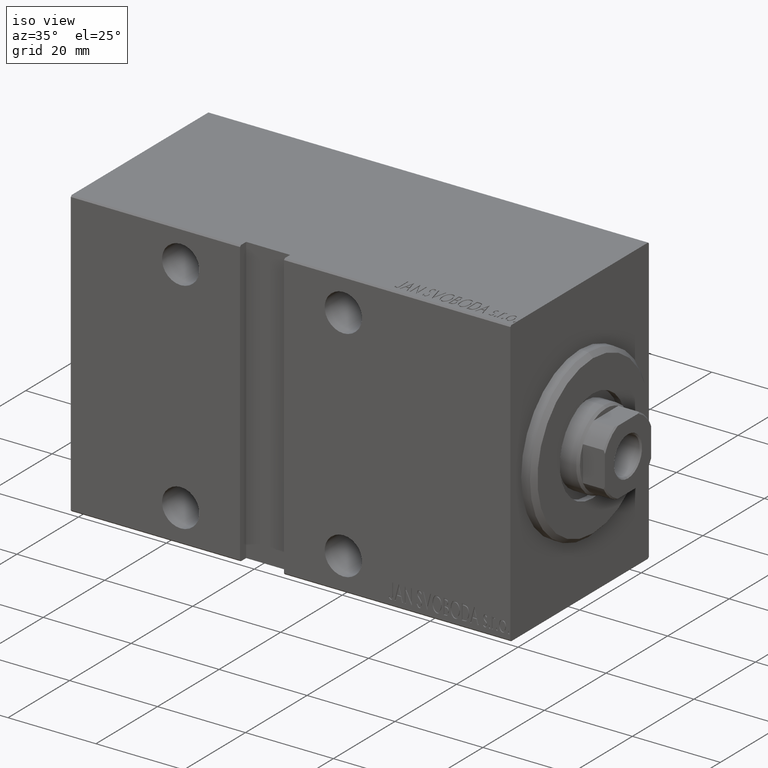
[diagram: clean part render]
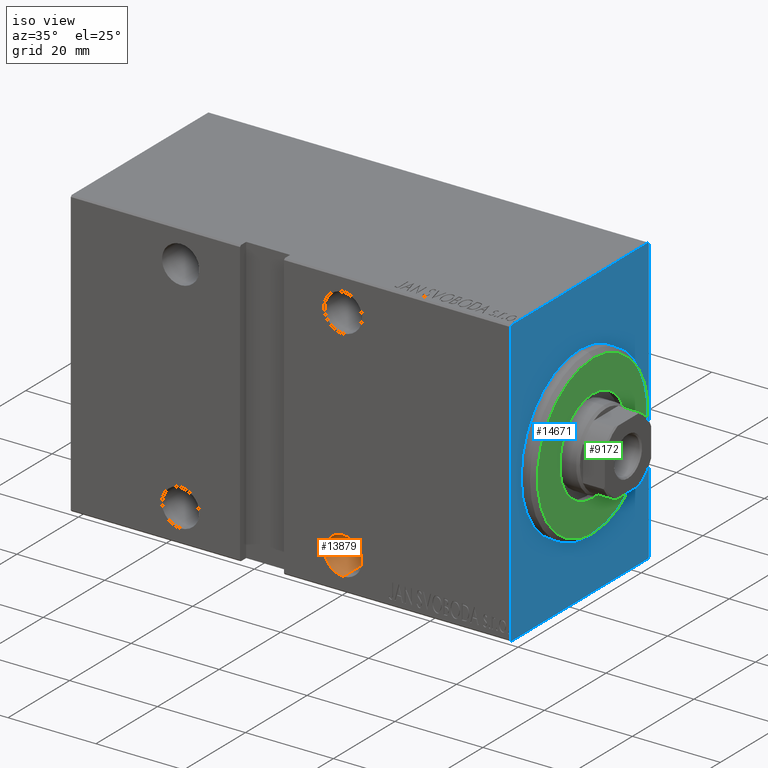
[diagram: same view with three faces highlighted in distinct colors, each labeled with its STEP entity id]
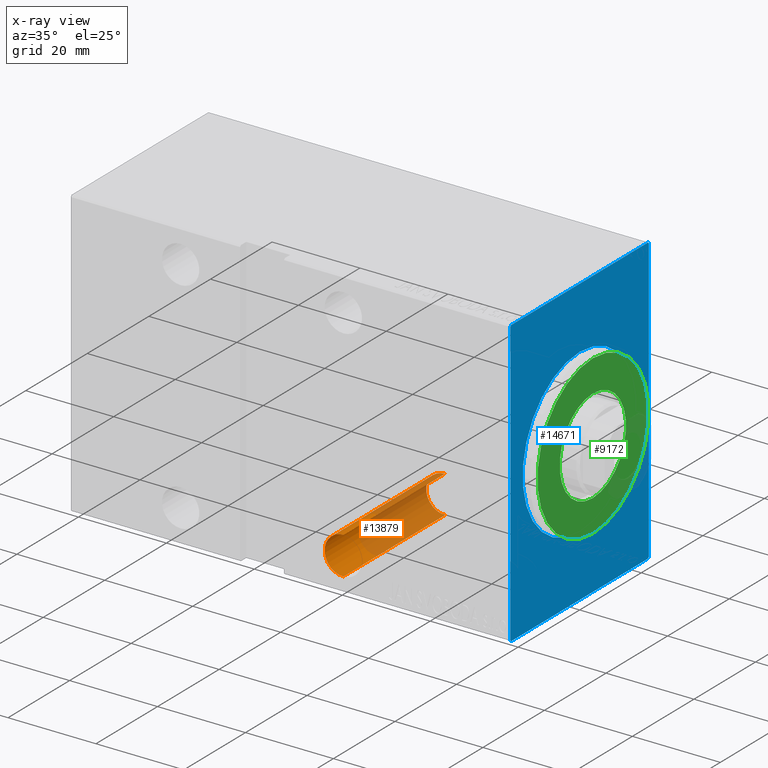
[diagram: x-ray of the same camera — body ghosted, the three highlighted faces saturated]
A machine part, iso view with three faces highlighted in distinct colors.
The next image is the same camera in x-ray (body ghosted, the three faces saturated) — at least one of them is partly hidden behind the body in this view.
Their STEP definitions:

[orange] entity #13879 — the highlighted cylindrical surface (edge-blend (fillet) strip) has radius 4.25 mm, axis along (0, -1, 0).
#2308 = ORIENTED_EDGE ( 'NONE', *, *, #37726, .F. ) ;
#3175 = ORIENTED_EDGE ( 'NONE', *, *, #19054, .F. ) ;
#3589 = AXIS2_PLACEMENT_3D ( 'NONE', #19156, #6483, #42563 ) ;
#3669 = CARTESIAN_POINT ( 'NONE',  ( 38.00000000000000711, -10.49999999999999467, -24.99999999999999645 ) ) ;
#5349 = AXIS2_PLACEMENT_3D ( 'NONE', #34226, #13668, #26984 ) ;
#6483 = DIRECTION ( 'NONE',  ( 0.000000000000000000, -1.000000000000000000, -1.067522139062650425E-16 ) ) ;
#7336 = CYLINDRICAL_SURFACE ( 'NONE', #5349, 4.250000000000003553 ) ;
#8058 = CARTESIAN_POINT ( 'NONE',  ( 38.00000000000000711, -22.50000000000001776, -20.74999999999999289 ) ) ;
#10815 = VERTEX_POINT ( 'NONE', #23837 ) ;
#13668 = DIRECTION ( 'NONE',  ( -0.000000000000000000, 1.000000000000000000, 1.261617073437677752E-16 ) ) ;
#13879 = ADVANCED_FACE ( 'NONE', ( #30280 ), #7336, .F. ) ;
#14787 = VECTOR ( 'NONE', #35364, 1000.000000000000000 ) ;
#15052 = DIRECTION ( 'NONE',  ( -0.000000000000000000, 1.000000000000000000, 1.261617073437677752E-16 ) ) ;
#16551 = DIRECTION ( 'NONE',  ( 0.000000000000000000, 0.000000000000000000, -1.000000000000000000 ) ) ;
#17667 = VERTEX_POINT ( 'NONE', #33690 ) ;
#18072 = VERTEX_POINT ( 'NONE', #37576 ) ;
#18340 = LINE ( 'NONE', #21815, #23836 ) ;
#19054 = EDGE_CURVE ( 'NONE', #10815, #18072, #34757, .T. ) ;
#19156 = CARTESIAN_POINT ( 'NONE',  ( 38.00000000000000711, 22.50000000000000355, -24.99999999999998934 ) ) ;
#20470 = DIRECTION ( 'NONE',  ( -0.000000000000000000, 1.000000000000000000, -0.000000000000000000 ) ) ;
#21402 = ORIENTED_EDGE ( 'NONE', *, *, #34186, .T. ) ;
#21815 = CARTESIAN_POINT ( 'NONE',  ( 38.00000000000000711, -22.50000000000001776, -29.25000000000000000 ) ) ;
#22403 = CIRCLE ( 'NONE', #3589, 4.250000000000003553 ) ;
#23836 = VECTOR ( 'NONE', #15052, 1000.000000000000000 ) ;
#23837 = CARTESIAN_POINT ( 'NONE',  ( 38.00000000000000711, -10.49999999999999467, -20.74999999999999289 ) ) ;
#24286 = VERTEX_POINT ( 'NONE', #31142 ) ;
#26377 = AXIS2_PLACEMENT_3D ( 'NONE', #3669, #20470, #16551 ) ;
#26984 = DIRECTION ( 'NONE',  ( 0.000000000000000000, 0.000000000000000000, 1.000000000000000000 ) ) ;
#30280 = FACE_OUTER_BOUND ( 'NONE', #36380, .T. ) ;
#31142 = CARTESIAN_POINT ( 'NONE',  ( 38.00000000000000711, 22.50000000000000355, -29.24999999999999645 ) ) ;
#33339 = ORIENTED_EDGE ( 'NONE', *, *, #35633, .F. ) ;
#33690 = CARTESIAN_POINT ( 'NONE',  ( 38.00000000000000711, 22.50000000000000355, -20.74999999999998579 ) ) ;
#34186 = EDGE_CURVE ( 'NONE', #10815, #17667, #35147, .T. ) ;
#34226 = CARTESIAN_POINT ( 'NONE',  ( 38.00000000000000711, -22.50000000000001776, -24.99999999999999645 ) ) ;
#34757 = CIRCLE ( 'NONE', #26377, 4.250000000000003553 ) ;
#35147 = LINE ( 'NONE', #8058, #14787 ) ;
#35364 = DIRECTION ( 'NONE',  ( -0.000000000000000000, 1.000000000000000000, 1.261617073437677752E-16 ) ) ;
#35633 = EDGE_CURVE ( 'NONE', #18072, #24286, #18340, .T. ) ;
#36380 = EDGE_LOOP ( 'NONE', ( #33339, #3175, #21402, #2308 ) ) ;
#37576 = CARTESIAN_POINT ( 'NONE',  ( 38.00000000000000711, -10.49999999999999467, -29.25000000000000000 ) ) ;
#37726 = EDGE_CURVE ( 'NONE', #24286, #17667, #22403, .T. ) ;
#42563 = DIRECTION ( 'NONE',  ( 0.000000000000000000, 0.000000000000000000, -1.000000000000000000 ) ) ;

[blue] entity #14671 — the highlighted planar face has unit normal (-1, 0, 0).
#358 = VERTEX_POINT ( 'NONE', #21880 ) ;
#1128 = DIRECTION ( 'NONE',  ( 0.000000000000000000, 1.000000000000000000, 0.000000000000000000 ) ) ;
#2175 = DIRECTION ( 'NONE',  ( 0.000000000000000000, 0.000000000000000000, -1.000000000000000000 ) ) ;
#2690 = CARTESIAN_POINT ( 'NONE',  ( 0.000000000000000000, -22.19999999999997442, -32.50000000000000000 ) ) ;
#3183 = ORIENTED_EDGE ( 'NONE', *, *, #4014, .T. ) ;
#3912 = FACE_BOUND ( 'NONE', #25426, .T. ) ;
#3928 = EDGE_CURVE ( 'NONE', #358, #28873, #4873, .T. ) ;
#3972 = CARTESIAN_POINT ( 'NONE',  ( 0.000000000000000000, 22.49999999999999645, 32.19999999999998153 ) ) ;
#4014 = EDGE_CURVE ( 'NONE', #33284, #37132, #35384, .T. ) ;
#4868 = DIRECTION ( 'NONE',  ( 0.000000000000000000, 0.000000000000000000, -1.000000000000000000 ) ) ;
#4873 = LINE ( 'NONE', #21233, #40871 ) ;
#5272 = ORIENTED_EDGE ( 'NONE', *, *, #12531, .F. ) ;
#5995 = VECTOR ( 'NONE', #2175, 1000.000000000000000 ) ;
#6184 = DIRECTION ( 'NONE',  ( -0.000000000000000000, -0.7071067811865474617, 0.7071067811865474617 ) ) ;
#6994 = DIRECTION ( 'NONE',  ( 0.000000000000000000, -1.000000000000000000, -1.541976423090495633E-16 ) ) ;
#7090 = VERTEX_POINT ( 'NONE', #10587 ) ;
#7102 = VERTEX_POINT ( 'NONE', #10376 ) ;
#7111 = ORIENTED_EDGE ( 'NONE', *, *, #28235, .F. ) ;
#7291 = ORIENTED_EDGE ( 'NONE', *, *, #31203, .T. ) ;
#7788 = DIRECTION ( 'NONE',  ( 0.000000000000000000, -0.7071067811865474617, -0.7071067811865474617 ) ) ;
#9679 = LINE ( 'NONE', #2690, #33560 ) ;
#9684 = CARTESIAN_POINT ( 'NONE',  ( 0.000000000000000000, 22.50000000000000355, -32.19999999999998153 ) ) ;
#9916 = EDGE_CURVE ( 'NONE', #7090, #28367, #25979, .T. ) ;
#9936 = AXIS2_PLACEMENT_3D ( 'NONE', #11835, #31925, #4868 ) ;
#10376 = CARTESIAN_POINT ( 'NONE',  ( 0.000000000000000000, -22.19999999999997442, -32.50000000000000000 ) ) ;
#10456 = PLANE ( 'NONE',  #12320 ) ;
#10587 = CARTESIAN_POINT ( 'NONE',  ( 0.000000000000000000, 22.19999999999997442, 32.50000000000000711 ) ) ;
#11046 = EDGE_LOOP ( 'NONE', ( #13870, #19536, #7111, #13644, #14765, #7291, #5272, #22053 ) ) ;
#11227 = DIRECTION ( 'NONE',  ( 0.000000000000000000, -1.067522139062650425E-16, 1.000000000000000000 ) ) ;
#11835 = CARTESIAN_POINT ( 'NONE',  ( 0.000000000000000000, 0.000000000000000000, 0.000000000000000000 ) ) ;
#12166 = VECTOR ( 'NONE', #1128, 1000.000000000000000 ) ;
#12320 = AXIS2_PLACEMENT_3D ( 'NONE', #13736, #20289, #20499 ) ;
#12531 = EDGE_CURVE ( 'NONE', #358, #43153, #35386, .T. ) ;
#13644 = ORIENTED_EDGE ( 'NONE', *, *, #42783, .T. ) ;
#13736 = CARTESIAN_POINT ( 'NONE',  ( 0.000000000000000000, 0.000000000000000000, 0.000000000000000000 ) ) ;
#13870 = ORIENTED_EDGE ( 'NONE', *, *, #36366, .F. ) ;
#14671 = ADVANCED_FACE ( 'NONE', ( #3912, #30123 ), #10456, .F. ) ;
#14765 = ORIENTED_EDGE ( 'NONE', *, *, #43008, .F. ) ;
#15523 = VECTOR ( 'NONE', #6994, 1000.000000000000000 ) ;
#16527 = AXIS2_PLACEMENT_3D ( 'NONE', #17753, #31071, #21449 ) ;
#17452 = CARTESIAN_POINT ( 'NONE',  ( 0.000000000000000000, 0.000000000000000000, 18.49999999999998934 ) ) ;
#17753 = CARTESIAN_POINT ( 'NONE',  ( 0.000000000000000000, 0.000000000000000000, 0.000000000000000000 ) ) ;
#18582 = CARTESIAN_POINT ( 'NONE',  ( 0.000000000000000000, 22.19999999999996732, -32.50000000000000000 ) ) ;
#18757 = CARTESIAN_POINT ( 'NONE',  ( 0.000000000000000000, -22.19999999999996021, 32.50000000000000000 ) ) ;
#19536 = ORIENTED_EDGE ( 'NONE', *, *, #9916, .T. ) ;
#19703 = CIRCLE ( 'NONE', #9936, 18.49999999999998934 ) ;
#20289 = DIRECTION ( 'NONE',  ( 1.000000000000000000, 0.000000000000000000, 0.000000000000000000 ) ) ;
#20499 = DIRECTION ( 'NONE',  ( 0.000000000000000000, 0.000000000000000000, -1.000000000000000000 ) ) ;
#21233 = CARTESIAN_POINT ( 'NONE',  ( 0.000000000000000000, -22.49999999999999645, 32.19999999999998153 ) ) ;
#21449 = DIRECTION ( 'NONE',  ( 0.000000000000000000, 0.000000000000000000, -1.000000000000000000 ) ) ;
#21880 = CARTESIAN_POINT ( 'NONE',  ( 0.000000000000000000, -22.49999999999999645, 32.19999999999998153 ) ) ;
#22053 = ORIENTED_EDGE ( 'NONE', *, *, #3928, .T. ) ;
#22700 = DIRECTION ( 'NONE',  ( -0.000000000000000000, 0.7071067811865392461, -0.7071067811865556774 ) ) ;
#22921 = CARTESIAN_POINT ( 'NONE',  ( 0.000000000000000000, -22.49999999999999645, -32.19999999999998153 ) ) ;
#24872 = VERTEX_POINT ( 'NONE', #9684 ) ;
#25426 = EDGE_LOOP ( 'NONE', ( #3183, #39590 ) ) ;
#25979 = LINE ( 'NONE', #39334, #27523 ) ;
#27507 = CARTESIAN_POINT ( 'NONE',  ( 0.000000000000000000, 22.49999999999999645, 32.50000000000000711 ) ) ;
#27523 = VECTOR ( 'NONE', #22700, 1000.000000000000114 ) ;
#28235 = EDGE_CURVE ( 'NONE', #24872, #28367, #38543, .T. ) ;
#28367 = VERTEX_POINT ( 'NONE', #3972 ) ;
#28873 = VERTEX_POINT ( 'NONE', #18757 ) ;
#29138 = CARTESIAN_POINT ( 'NONE',  ( 0.000000000000000000, 2.265596578422602213E-15, -18.49999999999998934 ) ) ;
#30123 = FACE_OUTER_BOUND ( 'NONE', #11046, .T. ) ;
#31071 = DIRECTION ( 'NONE',  ( 1.000000000000000000, 0.000000000000000000, 0.000000000000000000 ) ) ;
#31148 = LINE ( 'NONE', #34012, #31722 ) ;
#31203 = EDGE_CURVE ( 'NONE', #7102, #43153, #9679, .T. ) ;
#31295 = DIRECTION ( 'NONE',  ( -0.000000000000000000, 0.7071067811865474617, 0.7071067811865474617 ) ) ;
#31722 = VECTOR ( 'NONE', #7788, 1000.000000000000114 ) ;
#31898 = LINE ( 'NONE', #34768, #12166 ) ;
#31925 = DIRECTION ( 'NONE',  ( 1.000000000000000000, 0.000000000000000000, 0.000000000000000000 ) ) ;
#33020 = VERTEX_POINT ( 'NONE', #18582 ) ;
#33284 = VERTEX_POINT ( 'NONE', #17452 ) ;
#33560 = VECTOR ( 'NONE', #6184, 1000.000000000000114 ) ;
#34012 = CARTESIAN_POINT ( 'NONE',  ( 0.000000000000000000, 22.50000000000000355, -32.19999999999998153 ) ) ;
#34197 = VECTOR ( 'NONE', #11227, 1000.000000000000000 ) ;
#34768 = CARTESIAN_POINT ( 'NONE',  ( 0.000000000000000000, -22.49999999999999645, -32.50000000000000000 ) ) ;
#35384 = CIRCLE ( 'NONE', #16527, 18.49999999999998934 ) ;
#35386 = LINE ( 'NONE', #38879, #5995 ) ;
#36366 = EDGE_CURVE ( 'NONE', #7090, #28873, #40647, .T. ) ;
#37132 = VERTEX_POINT ( 'NONE', #29138 ) ;
#38325 = CARTESIAN_POINT ( 'NONE',  ( 0.000000000000000000, 22.50000000000000355, -32.50000000000000000 ) ) ;
#38543 = LINE ( 'NONE', #38325, #34197 ) ;
#38879 = CARTESIAN_POINT ( 'NONE',  ( 0.000000000000000000, -22.49999999999999645, 32.50000000000000000 ) ) ;
#39334 = CARTESIAN_POINT ( 'NONE',  ( 0.000000000000000000, 22.19999999999997442, 32.50000000000000711 ) ) ;
#39590 = ORIENTED_EDGE ( 'NONE', *, *, #40403, .T. ) ;
#40403 = EDGE_CURVE ( 'NONE', #37132, #33284, #19703, .T. ) ;
#40647 = LINE ( 'NONE', #27507, #15523 ) ;
#40871 = VECTOR ( 'NONE', #31295, 1000.000000000000114 ) ;
#42783 = EDGE_CURVE ( 'NONE', #24872, #33020, #31148, .T. ) ;
#43008 = EDGE_CURVE ( 'NONE', #7102, #33020, #31898, .T. ) ;
#43153 = VERTEX_POINT ( 'NONE', #22921 ) ;

[green] entity #9172 — the highlighted planar face has unit normal (1, 0, 0).
#656 = CARTESIAN_POINT ( 'NONE',  ( 3.000000000000000000, 0.000000000000000000, 17.99999999999999645 ) ) ;
#1994 = EDGE_CURVE ( 'NONE', #39720, #23581, #17910, .T. ) ;
#3228 = EDGE_CURVE ( 'NONE', #23581, #39720, #7361, .T. ) ;
#3257 = DIRECTION ( 'NONE',  ( 0.000000000000000000, 0.000000000000000000, -1.000000000000000000 ) ) ;
#3904 = CARTESIAN_POINT ( 'NONE',  ( 3.000000000000000000, 0.000000000000000000, 0.000000000000000000 ) ) ;
#4996 = FACE_OUTER_BOUND ( 'NONE', #10755, .T. ) ;
#6488 = AXIS2_PLACEMENT_3D ( 'NONE', #3904, #23128, #3257 ) ;
#6834 = ORIENTED_EDGE ( 'NONE', *, *, #13309, .T. ) ;
#7354 = ORIENTED_EDGE ( 'NONE', *, *, #1994, .T. ) ;
#7361 = CIRCLE ( 'NONE', #26188, 17.99999999999999645 ) ;
#8125 = ORIENTED_EDGE ( 'NONE', *, *, #42453, .T. ) ;
#9172 = ADVANCED_FACE ( 'NONE', ( #4996, #10882 ), #27911, .T. ) ;
#10755 = EDGE_LOOP ( 'NONE', ( #7354, #42433 ) ) ;
#10882 = FACE_BOUND ( 'NONE', #34886, .T. ) ;
#12214 = DIRECTION ( 'NONE',  ( 0.000000000000000000, 0.000000000000000000, -1.000000000000000000 ) ) ;
#13309 = EDGE_CURVE ( 'NONE', #34383, #34536, #20642, .T. ) ;
#14845 = CIRCLE ( 'NONE', #6488, 10.75000000000000000 ) ;
#17910 = CIRCLE ( 'NONE', #25563, 17.99999999999999645 ) ;
#18314 = DIRECTION ( 'NONE',  ( 1.000000000000000000, -0.000000000000000000, 0.000000000000000000 ) ) ;
#19130 = CARTESIAN_POINT ( 'NONE',  ( 3.000000000000000000, 0.000000000000000000, 10.75000000000000000 ) ) ;
#19679 = CARTESIAN_POINT ( 'NONE',  ( 3.000000000000000000, 0.000000000000000000, 0.000000000000000000 ) ) ;
#20642 = CIRCLE ( 'NONE', #31812, 10.75000000000000000 ) ;
#23128 = DIRECTION ( 'NONE',  ( -1.000000000000000000, 0.000000000000000000, -0.000000000000000000 ) ) ;
#23581 = VERTEX_POINT ( 'NONE', #31081 ) ;
#25563 = AXIS2_PLACEMENT_3D ( 'NONE', #19679, #33004, #36706 ) ;
#26188 = AXIS2_PLACEMENT_3D ( 'NONE', #26806, #40164, #37095 ) ;
#26806 = CARTESIAN_POINT ( 'NONE',  ( 3.000000000000000000, 0.000000000000000000, 0.000000000000000000 ) ) ;
#27911 = PLANE ( 'NONE',  #42409 ) ;
#28815 = CARTESIAN_POINT ( 'NONE',  ( 3.000000000000000000, 0.000000000000000000, 0.000000000000000000 ) ) ;
#31081 = CARTESIAN_POINT ( 'NONE',  ( 3.000000000000000000, 2.265596578422603002E-15, -17.99999999999999645 ) ) ;
#31812 = AXIS2_PLACEMENT_3D ( 'NONE', #28815, #32098, #12214 ) ;
#32020 = CARTESIAN_POINT ( 'NONE',  ( 3.000000000000000000, 1.316495309083404223E-15, -10.75000000000000000 ) ) ;
#32098 = DIRECTION ( 'NONE',  ( -1.000000000000000000, 0.000000000000000000, -0.000000000000000000 ) ) ;
#33004 = DIRECTION ( 'NONE',  ( 1.000000000000000000, -0.000000000000000000, 0.000000000000000000 ) ) ;
#34059 = CARTESIAN_POINT ( 'NONE',  ( 3.000000000000000000, 0.000000000000000000, 0.000000000000000000 ) ) ;
#34279 = DIRECTION ( 'NONE',  ( 0.000000000000000000, 0.000000000000000000, -1.000000000000000000 ) ) ;
#34383 = VERTEX_POINT ( 'NONE', #32020 ) ;
#34536 = VERTEX_POINT ( 'NONE', #19130 ) ;
#34886 = EDGE_LOOP ( 'NONE', ( #8125, #6834 ) ) ;
#36706 = DIRECTION ( 'NONE',  ( 0.000000000000000000, 0.000000000000000000, -1.000000000000000000 ) ) ;
#37095 = DIRECTION ( 'NONE',  ( 0.000000000000000000, 0.000000000000000000, -1.000000000000000000 ) ) ;
#39720 = VERTEX_POINT ( 'NONE', #656 ) ;
#40164 = DIRECTION ( 'NONE',  ( 1.000000000000000000, -0.000000000000000000, 0.000000000000000000 ) ) ;
#42409 = AXIS2_PLACEMENT_3D ( 'NONE', #34059, #18314, #34279 ) ;
#42433 = ORIENTED_EDGE ( 'NONE', *, *, #3228, .T. ) ;
#42453 = EDGE_CURVE ( 'NONE', #34536, #34383, #14845, .T. ) ;